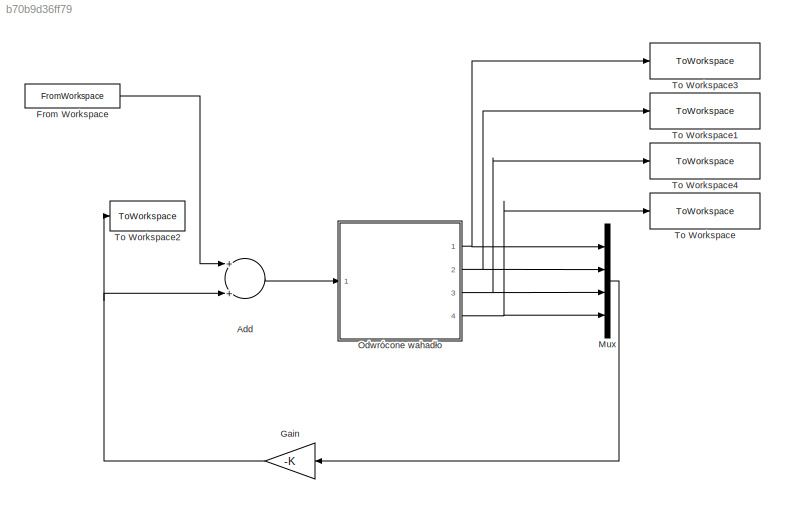
MODEL slx_b70b9d36ff79
KIND model
CONFIG AbsTol = auto
CONFIG EnableMultiTasking = off
CONFIG FixedStep = t_krok
CONFIG MaxStep = auto
CONFIG MinStep = auto
CONFIG RelTol = 1e-3
CONFIG SampleTimeConstraint = Unconstrained
CONFIG Solver = FixedStepAuto
CONFIG SolverName = FixedStepAuto
CONFIG StartTime = 0.0
CONFIG StopTime = T_symulacji
BLOCK [Sum] Add
  InputSameDT = off
  OutDataTypeStr = Inherit: Inherit via internal rule
  Ports = [2, 1]
  SaturateOnIntegerOverflow = off
BLOCK [FromWorkspace] From Workspace
  SampleTime = 0
  VariableName = F_zaklocajaca_sim
  ZeroCross = on
BLOCK [Gain] Gain
  Gain = -K
  Multiplication = Matrix(K*u)
  OutDataTypeStr = Inherit: Inherit via internal rule
  ParamDataTypeStr = Inherit: Inherit via internal rule
  SaturateOnIntegerOverflow = off
BLOCK [Mux] Mux
  DisplayOption = bar
  Ports = [4, 1]
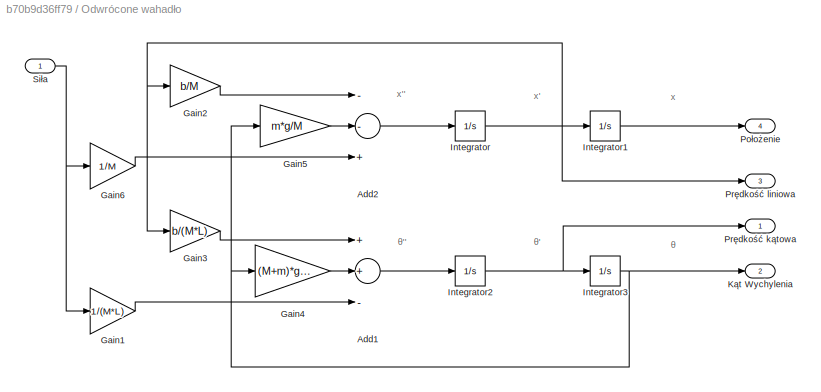
BLOCK [SubSystem] Odwrócone wahadło 
  Ports = [1, 4]
  RequestExecContextInheritance = off
BLOCK [Sum] Odwrócone wahadło /Add1
  InputSameDT = off
  Inputs = ++-
  OutDataTypeStr = Inherit: Inherit via internal rule
  Ports = [3, 1]
  SaturateOnIntegerOverflow = off
BLOCK [Sum] Odwrócone wahadło /Add2
  InputSameDT = off
  Inputs = --+
  OutDataTypeStr = Inherit: Inherit via internal rule
  Ports = [3, 1]
  SaturateOnIntegerOverflow = off
BLOCK [Gain] Odwrócone wahadło /Gain1
  Gain = 1/(M*L)
  OutDataTypeStr = Inherit: Inherit via internal rule
  ParamDataTypeStr = Inherit: Inherit via internal rule
  SaturateOnIntegerOverflow = off
BLOCK [Gain] Odwrócone wahadło /Gain2
  Gain = b/M
  OutDataTypeStr = Inherit: Inherit via internal rule
  ParamDataTypeStr = Inherit: Inherit via internal rule
  SaturateOnIntegerOverflow = off
BLOCK [Gain] Odwrócone wahadło /Gain3
  Gain = b/(M*L)
  OutDataTypeStr = Inherit: Inherit via internal rule
  ParamDataTypeStr = Inherit: Inherit via internal rule
  SaturateOnIntegerOverflow = off
BLOCK [Gain] Odwrócone wahadło /Gain4
  Gain = (M+m)*g/M/L
  OutDataTypeStr = Inherit: Inherit via internal rule
  ParamDataTypeStr = Inherit: Inherit via internal rule
  SaturateOnIntegerOverflow = off
BLOCK [Gain] Odwrócone wahadło /Gain5
  Gain = m*g/M
  OutDataTypeStr = Inherit: Inherit via internal rule
  ParamDataTypeStr = Inherit: Inherit via internal rule
  SaturateOnIntegerOverflow = off
BLOCK [Gain] Odwrócone wahadło /Gain6
  Gain = 1/M
  OutDataTypeStr = Inherit: Inherit via internal rule
  ParamDataTypeStr = Inherit: Inherit via internal rule
  SaturateOnIntegerOverflow = off
BLOCK [Integrator] Odwrócone wahadło /Integrator
  Ports = [1, 1]
BLOCK [Integrator] Odwrócone wahadło /Integrator1
  Ports = [1, 1]
BLOCK [Integrator] Odwrócone wahadło /Integrator2
  Ports = [1, 1]
BLOCK [Integrator] Odwrócone wahadło /Integrator3
  Ports = [1, 1]
BLOCK [Outport] Odwrócone wahadło /Kąt Wychylenia
  IconDisplay = Port number
  Port = 2
BLOCK [Outport] Odwrócone wahadło /Położenie
  IconDisplay = Port number
  Port = 4
BLOCK [Outport] Odwrócone wahadło /Prędkość kątowa
  IconDisplay = Port number
BLOCK [Outport] Odwrócone wahadło /Prędkość liniowa
  IconDisplay = Port number
  Port = 3
BLOCK [Inport] Odwrócone wahadło /Siła
  IconDisplay = Port number
BLOCK [ToWorkspace] To Workspace
  FixptAsFi = on
  MaxDataPoints = inf
  Ports = [1]
  SampleTime = -1
  Save2DSignal = 3-D array (concatenate along third dimension)
  VariableName = przemieszczenie
BLOCK [ToWorkspace] To Workspace1
  FixptAsFi = on
  MaxDataPoints = inf
  Ports = [1]
  SampleTime = -1
  Save2DSignal = 3-D array (concatenate along third dimension)
  VariableName = kat
BLOCK [ToWorkspace] To Workspace2
  FixptAsFi = on
  MaxDataPoints = inf
  Ports = [1]
  SampleTime = -1
  Save2DSignal = 3-D array (concatenate along third dimension)
  VariableName = F_generowana
BLOCK [ToWorkspace] To Workspace3
  FixptAsFi = on
  MaxDataPoints = inf
  Ports = [1]
  SampleTime = -1
  Save2DSignal = 3-D array (concatenate along third dimension)
  VariableName = pred_katowa
BLOCK [ToWorkspace] To Workspace4
  FixptAsFi = on
  MaxDataPoints = inf
  Ports = [1]
  SampleTime = -1
  Save2DSignal = 3-D array (concatenate along third dimension)
  VariableName = pred_liniowa
ANNOTATION Odwrócone wahadło : x''
ANNOTATION Odwrócone wahadło : x'
ANNOTATION Odwrócone wahadło : x
ANNOTATION Odwrócone wahadło : θ''
ANNOTATION Odwrócone wahadło : θ'
ANNOTATION Odwrócone wahadło : θ
LINE Add:1 -> Odwrócone wahadło :1
LINE From Workspace:1 -> Add:1
NET Gain:1 -> Add:2, To Workspace2:1
LINE Mux:1 -> Gain:1
LINE Odwrócone wahadło /Add1:1 -> Odwrócone wahadło /Integrator2:1
LINE Odwrócone wahadło /Add2:1 -> Odwrócone wahadło /Integrator:1
LINE Odwrócone wahadło /Gain1:1 -> Odwrócone wahadło /Add1:3
LINE Odwrócone wahadło /Gain2:1 -> Odwrócone wahadło /Add2:1
LINE Odwrócone wahadło /Gain3:1 -> Odwrócone wahadło /Add1:1
LINE Odwrócone wahadło /Gain4:1 -> Odwrócone wahadło /Add1:2
LINE Odwrócone wahadło /Gain5:1 -> Odwrócone wahadło /Add2:2
LINE Odwrócone wahadło /Gain6:1 -> Odwrócone wahadło /Add2:3
LINE Odwrócone wahadło /Integrator1:1 -> Odwrócone wahadło /Położenie:1
NET Odwrócone wahadło /Integrator2:1 -> Odwrócone wahadło /Integrator3:1, Odwrócone wahadło /Prędkość kątowa:1
NET Odwrócone wahadło /Integrator3:1 -> Odwrócone wahadło /Gain4:1, Odwrócone wahadło /Gain5:1, Odwrócone wahadło /Kąt Wychylenia:1
NET Odwrócone wahadło /Integrator:1 -> Odwrócone wahadło /Gain2:1, Odwrócone wahadło /Gain3:1, Odwrócone wahadło /Integrator1:1, Odwrócone wahadło /Prędkość liniowa:1
NET Odwrócone wahadło /Siła:1 -> Odwrócone wahadło /Gain1:1, Odwrócone wahadło /Gain6:1
NET Odwrócone wahadło :1 -> Mux:1, To Workspace3:1
NET Odwrócone wahadło :2 -> Mux:2, To Workspace1:1
NET Odwrócone wahadło :3 -> Mux:3, To Workspace4:1
NET Odwrócone wahadło :4 -> Mux:4, To Workspace:1
note: NET lines group one-source signal fan-out (src -> all destinations, sorted); 1:1 wires keep LINE
